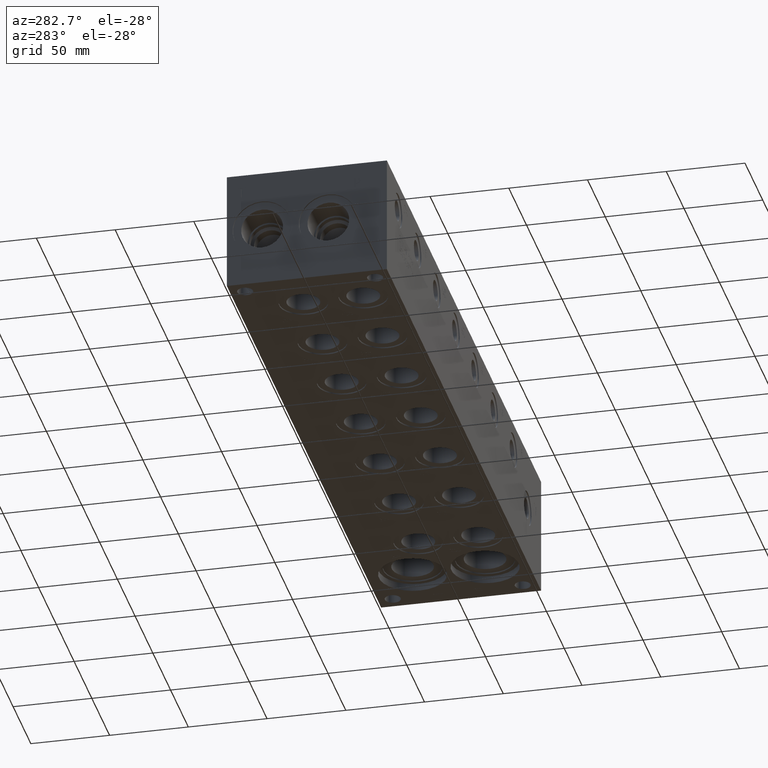
[diagram: clean part render]
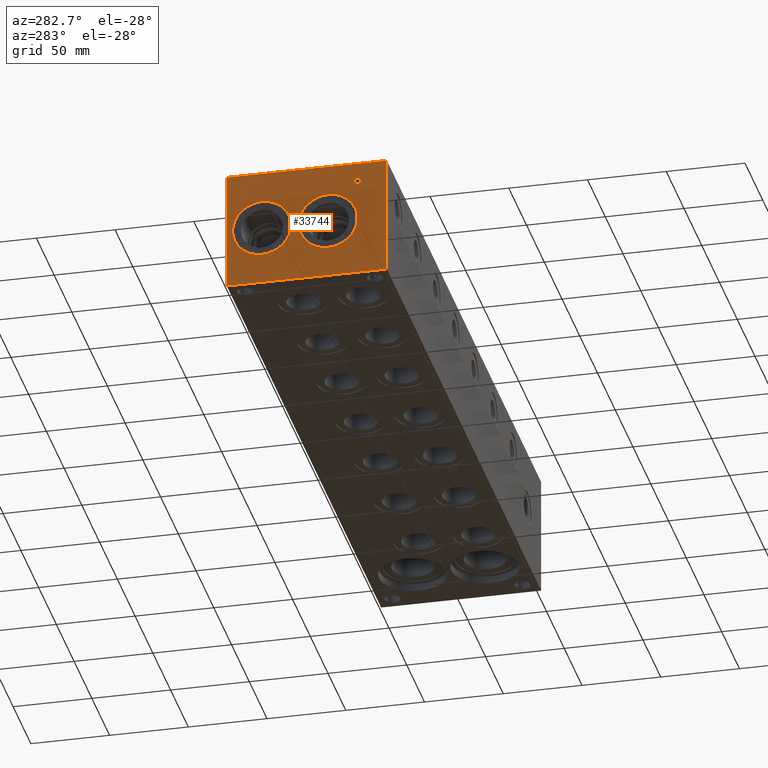
[diagram: same view with one face highlighted and labeled with its STEP entity id]
A machine part, auxiliary view. The second image highlights one B-rep face of the part: STEP entity #33744.
In plain terms, the highlighted planar face has unit normal (-1, 0, 0).
Its self-contained STEP definition (entity closure, byte-faithful):
#452=CIRCLE('',#35394,18.5547);
#453=CIRCLE('',#35395,18.5547);
#454=CIRCLE('',#35396,18.5547);
#455=CIRCLE('',#35397,18.5547);
#1409=FACE_BOUND('',#5871,.T.);
#1410=FACE_BOUND('',#5872,.T.);
#1411=FACE_BOUND('',#5873,.T.);
#1412=FACE_BOUND('',#5874,.T.);
#2229=B_SPLINE_CURVE_WITH_KNOTS('',2,(#51890,#51891,#51892,#51893),
 .UNSPECIFIED.,.F.,.F.,(3,1,3),(0.,1.,2.),.UNSPECIFIED.);
#2231=B_SPLINE_CURVE_WITH_KNOTS('',2,(#51911,#51912,#51913,#51914),
 .UNSPECIFIED.,.F.,.F.,(3,1,3),(0.,1.,2.),.UNSPECIFIED.);
#2233=B_SPLINE_CURVE_WITH_KNOTS('',2,(#51960,#51961,#51962,#51963),
 .UNSPECIFIED.,.F.,.F.,(3,1,3),(0.,1.,2.),.UNSPECIFIED.);
#2235=B_SPLINE_CURVE_WITH_KNOTS('',2,(#51978,#51979,#51980,#51981),
 .UNSPECIFIED.,.F.,.F.,(3,1,3),(0.,1.,2.),.UNSPECIFIED.);
#3948=FACE_OUTER_BOUND('',#5870,.T.);
#5870=EDGE_LOOP('',(#25106,#25107,#25108,#25109));
#5871=EDGE_LOOP('',(#25110,#25111));
#5872=EDGE_LOOP('',(#25112,#25113));
#5873=EDGE_LOOP('',(#25114,#25115,#25116,#25117,#25118,#25119,#25120,#25121));
#5874=EDGE_LOOP('',(#25122,#25123,#25124,#25125,#25126,#25127,#25128,#25129,
#25130));
#7509=LINE('',#46498,#10373);
#8032=LINE('',#48661,#10896);
#8648=LINE('',#51923,#11512);
#8651=LINE('',#51929,#11515);
#8654=LINE('',#51935,#11518);
#8657=LINE('',#51941,#11521);
#8660=LINE('',#51947,#11524);
#8664=LINE('',#51989,#11528);
#8665=LINE('',#51990,#11529);
#8666=LINE('',#52001,#11530);
#8667=LINE('',#52003,#11531);
#8668=LINE('',#52005,#11532);
#8669=LINE('',#52007,#11533);
#8670=LINE('',#52009,#11534);
#8671=LINE('',#52011,#11535);
#8672=LINE('',#52013,#11536);
#8673=LINE('',#52014,#11537);
#10373=VECTOR('',#37496,10.);
#10896=VECTOR('',#38375,10.);
#11512=VECTOR('',#39489,10.);
#11515=VECTOR('',#39494,10.);
#11518=VECTOR('',#39499,10.);
#11521=VECTOR('',#39504,10.);
#11524=VECTOR('',#39509,10.);
#11528=VECTOR('',#39517,10.);
#11529=VECTOR('',#39518,10.);
#11530=VECTOR('',#39527,10.);
#11531=VECTOR('',#39528,10.);
#11532=VECTOR('',#39529,10.);
#11533=VECTOR('',#39530,10.);
#11534=VECTOR('',#39531,10.);
#11535=VECTOR('',#39532,10.);
#11536=VECTOR('',#39533,10.);
#11537=VECTOR('',#39534,10.);
#13266=VERTEX_POINT('',#46491);
#13269=VERTEX_POINT('',#46496);
#13843=VERTEX_POINT('',#48660);
#14442=VERTEX_POINT('',#51888);
#14443=VERTEX_POINT('',#51889);
#14446=VERTEX_POINT('',#51910);
#14448=VERTEX_POINT('',#51922);
#14450=VERTEX_POINT('',#51928);
#14452=VERTEX_POINT('',#51934);
#14454=VERTEX_POINT('',#51940);
#14456=VERTEX_POINT('',#51946);
#14458=VERTEX_POINT('',#51959);
#14460=VERTEX_POINT('',#51988);
#14461=VERTEX_POINT('',#51991);
#14462=VERTEX_POINT('',#51992);
#14463=VERTEX_POINT('',#51995);
#14464=VERTEX_POINT('',#51996);
#14465=VERTEX_POINT('',#51999);
#14466=VERTEX_POINT('',#52000);
#14467=VERTEX_POINT('',#52002);
#14468=VERTEX_POINT('',#52004);
#14469=VERTEX_POINT('',#52006);
#14470=VERTEX_POINT('',#52008);
#14471=VERTEX_POINT('',#52010);
#14472=VERTEX_POINT('',#52012);
#16825=EDGE_CURVE('',#13266,#13269,#7509,.T.);
#17554=EDGE_CURVE('',#13843,#13266,#8032,.T.);
#18431=EDGE_CURVE('',#14442,#14443,#2229,.T.);
#18435=EDGE_CURVE('',#14446,#14442,#2231,.T.);
#18438=EDGE_CURVE('',#14448,#14446,#8648,.T.);
#18441=EDGE_CURVE('',#14450,#14448,#8651,.T.);
#18444=EDGE_CURVE('',#14452,#14450,#8654,.T.);
#18447=EDGE_CURVE('',#14454,#14452,#8657,.T.);
#18450=EDGE_CURVE('',#14456,#14454,#8660,.T.);
#18453=EDGE_CURVE('',#14458,#14456,#2233,.T.);
#18456=EDGE_CURVE('',#14443,#14458,#2235,.T.);
#18458=EDGE_CURVE('',#14460,#13269,#8664,.T.);
#18459=EDGE_CURVE('',#13843,#14460,#8665,.T.);
#18460=EDGE_CURVE('',#14461,#14462,#452,.T.);
#18461=EDGE_CURVE('',#14462,#14461,#453,.T.);
#18462=EDGE_CURVE('',#14463,#14464,#454,.T.);
#18463=EDGE_CURVE('',#14464,#14463,#455,.T.);
#18464=EDGE_CURVE('',#14465,#14466,#8666,.T.);
#18465=EDGE_CURVE('',#14466,#14467,#8667,.T.);
#18466=EDGE_CURVE('',#14467,#14468,#8668,.T.);
#18467=EDGE_CURVE('',#14468,#14469,#8669,.T.);
#18468=EDGE_CURVE('',#14469,#14470,#8670,.T.);
#18469=EDGE_CURVE('',#14470,#14471,#8671,.T.);
#18470=EDGE_CURVE('',#14471,#14472,#8672,.T.);
#18471=EDGE_CURVE('',#14472,#14465,#8673,.T.);
#25106=ORIENTED_EDGE('',*,*,#17554,.T.);
#25107=ORIENTED_EDGE('',*,*,#16825,.T.);
#25108=ORIENTED_EDGE('',*,*,#18458,.F.);
#25109=ORIENTED_EDGE('',*,*,#18459,.F.);
#25110=ORIENTED_EDGE('',*,*,#18460,.T.);
#25111=ORIENTED_EDGE('',*,*,#18461,.T.);
#25112=ORIENTED_EDGE('',*,*,#18462,.T.);
#25113=ORIENTED_EDGE('',*,*,#18463,.T.);
#25114=ORIENTED_EDGE('',*,*,#18464,.T.);
#25115=ORIENTED_EDGE('',*,*,#18465,.T.);
#25116=ORIENTED_EDGE('',*,*,#18466,.T.);
#25117=ORIENTED_EDGE('',*,*,#18467,.T.);
#25118=ORIENTED_EDGE('',*,*,#18468,.T.);
#25119=ORIENTED_EDGE('',*,*,#18469,.T.);
#25120=ORIENTED_EDGE('',*,*,#18470,.T.);
#25121=ORIENTED_EDGE('',*,*,#18471,.T.);
#25122=ORIENTED_EDGE('',*,*,#18431,.T.);
#25123=ORIENTED_EDGE('',*,*,#18456,.T.);
#25124=ORIENTED_EDGE('',*,*,#18453,.T.);
#25125=ORIENTED_EDGE('',*,*,#18450,.T.);
#25126=ORIENTED_EDGE('',*,*,#18447,.T.);
#25127=ORIENTED_EDGE('',*,*,#18444,.T.);
#25128=ORIENTED_EDGE('',*,*,#18441,.T.);
#25129=ORIENTED_EDGE('',*,*,#18438,.T.);
#25130=ORIENTED_EDGE('',*,*,#18435,.T.);
#31377=PLANE('',#35393);
#33744=ADVANCED_FACE('',(#3948,#1409,#1410,#1411,#1412),#31377,.T.);
#35393=AXIS2_PLACEMENT_3D('',#51987,#39515,#39516);
#35394=AXIS2_PLACEMENT_3D('',#51993,#39519,#39520);
#35395=AXIS2_PLACEMENT_3D('',#51994,#39521,#39522);
#35396=AXIS2_PLACEMENT_3D('',#51997,#39523,#39524);
#35397=AXIS2_PLACEMENT_3D('',#51998,#39525,#39526);
#37496=DIRECTION('',(0.,0.,1.));
#38375=DIRECTION('',(0.,-1.,0.));
#39489=DIRECTION('',(0.,-1.,-5.56775304226774E-15));
#39494=DIRECTION('',(0.,-3.49676548440641E-15,1.));
#39499=DIRECTION('',(0.,1.,0.));
#39504=DIRECTION('',(0.,3.75218139805001E-15,-1.));
#39509=DIRECTION('',(0.,1.,0.));
#39515=DIRECTION('center_axis',(-1.,0.,0.));
#39516=DIRECTION('ref_axis',(0.,-1.,0.));
#39517=DIRECTION('',(0.,-1.,0.));
#39518=DIRECTION('',(0.,0.,1.));
#39519=DIRECTION('center_axis',(1.,0.,0.));
#39520=DIRECTION('ref_axis',(0.,0.,1.));
#39521=DIRECTION('center_axis',(1.,0.,0.));
#39522=DIRECTION('ref_axis',(0.,0.,1.));
#39523=DIRECTION('center_axis',(1.,0.,0.));
#39524=DIRECTION('ref_axis',(0.,0.,1.));
#39525=DIRECTION('center_axis',(1.,0.,0.));
#39526=DIRECTION('ref_axis',(0.,0.,1.));
#39527=DIRECTION('',(0.,1.,0.));
#39528=DIRECTION('',(0.,-3.17280044688052E-15,1.));
#39529=DIRECTION('',(0.,1.,4.16909044227778E-15));
#39530=DIRECTION('',(0.,0.,1.));
#39531=DIRECTION('',(0.,-1.,-1.73992282570867E-15));
#39532=DIRECTION('',(0.,0.,-1.));
#39533=DIRECTION('',(0.,1.,0.));
#39534=DIRECTION('',(0.,3.17280044688052E-15,-1.));
#46491=CARTESIAN_POINT('',(0.,0.,0.));
#46496=CARTESIAN_POINT('',(0.,0.,76.2));
#46498=CARTESIAN_POINT('',(0.,0.,0.));
#48660=CARTESIAN_POINT('',(0.,101.6,0.));
#48661=CARTESIAN_POINT('',(0.,101.6,0.));
#51888=CARTESIAN_POINT('',(0.,17.5306827976406,65.4850181439707));
#51889=CARTESIAN_POINT('',(0.,16.774240345468,63.9669873726039));
#51890=CARTESIAN_POINT('Ctrl Pts',(0.,17.5306827976406,65.4850181439707));
#51891=CARTESIAN_POINT('Ctrl Pts',(0.,17.1756179731514,65.2431623939564));
#51892=CARTESIAN_POINT('Ctrl Pts',(0.,16.774240345468,64.4970116758269));
#51893=CARTESIAN_POINT('Ctrl Pts',(0.,16.774240345468,63.9669873726039));
#51910=CARTESIAN_POINT('',(0.,19.1927978456117,65.8812499046326));
#51911=CARTESIAN_POINT('Ctrl Pts',(0.,19.1927978456117,65.8812499046326));
#51912=CARTESIAN_POINT('Ctrl Pts',(0.,18.6267524732376,65.8812499046326));
#51913=CARTESIAN_POINT('Ctrl Pts',(0.,17.834288951914,65.6959986918556));
#51914=CARTESIAN_POINT('Ctrl Pts',(0.,17.5306827976406,65.4850181439707));
#51922=CARTESIAN_POINT('',(0.,20.7880166223022,65.8812499046326));
#51923=CARTESIAN_POINT('',(0.,61.1940083111509,65.8812499046328));
#51928=CARTESIAN_POINT('',(0.,20.7880166223022,59.53125));
#51929=CARTESIAN_POINT('',(0.,20.7880166223023,29.7656249999999));
#51934=CARTESIAN_POINT('',(0.,19.9440944307627,59.53125));
#51935=CARTESIAN_POINT('',(0.,60.7720472153814,59.53125));
#51940=CARTESIAN_POINT('',(0.,19.9440944307627,61.8983488299279));
#51941=CARTESIAN_POINT('',(0.,19.9440944307628,30.9491744149638));
#51946=CARTESIAN_POINT('',(0.,19.2288189147628,61.8983488299279));
#51947=CARTESIAN_POINT('',(0.,60.4144094573814,61.8983488299279));
#51959=CARTESIAN_POINT('',(0.,17.3299939837989,62.5570198086904));
#51960=CARTESIAN_POINT('Ctrl Pts',(0.,17.3299939837989,62.5570198086904));
#51961=CARTESIAN_POINT('Ctrl Pts',(0.,17.6593294731802,62.2328301863307));
#51962=CARTESIAN_POINT('Ctrl Pts',(0.,18.5495644679139,61.8983488299279));
#51963=CARTESIAN_POINT('Ctrl Pts',(0.,19.2288189147628,61.8983488299279));
#51978=CARTESIAN_POINT('Ctrl Pts',(0.,16.774240345468,63.9669873726039));
#51979=CARTESIAN_POINT('Ctrl Pts',(0.,16.774240345468,63.5553180108774));
#51980=CARTESIAN_POINT('Ctrl Pts',(0.,17.0675547656982,62.8143131597695));
#51981=CARTESIAN_POINT('Ctrl Pts',(0.,17.3299939837989,62.5570198086904));
#51987=CARTESIAN_POINT('Origin',(0.,101.6,0.));
#51988=CARTESIAN_POINT('',(0.,101.6,76.2));
#51989=CARTESIAN_POINT('',(0.,101.6,76.2));
#51990=CARTESIAN_POINT('',(0.,101.6,0.));
#51991=CARTESIAN_POINT('',(0.,79.375,56.6547));
#51992=CARTESIAN_POINT('',(0.,79.375,19.5453));
#51993=CARTESIAN_POINT('Origin',(0.,79.375,38.1));
#51994=CARTESIAN_POINT('Origin',(0.,79.375,38.1));
#51995=CARTESIAN_POINT('',(0.,37.3126,56.6547));
#51996=CARTESIAN_POINT('',(0.,37.3126,19.5453));
#51997=CARTESIAN_POINT('Origin',(0.,37.3126,38.1));
#51998=CARTESIAN_POINT('Origin',(0.,37.3126,38.1));
#51999=CARTESIAN_POINT('',(0.,91.487084728547,61.11875));
#52000=CARTESIAN_POINT('',(0.,92.3310069200865,61.11875));
#52001=CARTESIAN_POINT('',(0.,96.5435423642735,61.11875));
#52002=CARTESIAN_POINT('',(0.,92.3310069200865,66.7174533194815));
#52003=CARTESIAN_POINT('',(0.,92.3310069200866,30.559375));
#52004=CARTESIAN_POINT('',(0.,94.4613958670215,66.7174533194816));
#52005=CARTESIAN_POINT('',(0.,96.9655034600431,66.7174533194816));
#52006=CARTESIAN_POINT('',(0.,94.4613958670215,67.4687499046326));
#52007=CARTESIAN_POINT('',(0.,94.4613958670216,33.3587266597408));
#52008=CARTESIAN_POINT('',(0.,89.3566957816119,67.4687499046326));
#52009=CARTESIAN_POINT('',(0.,98.0306979335107,67.4687499046326));
#52010=CARTESIAN_POINT('',(0.,89.3566957816119,66.7174533194815));
#52011=CARTESIAN_POINT('',(0.,89.3566957816119,33.7343749523163));
#52012=CARTESIAN_POINT('',(0.,91.487084728547,66.7174533194815));
#52013=CARTESIAN_POINT('',(0.,95.4783478908059,66.7174533194815));
#52014=CARTESIAN_POINT('',(0.,91.4870847285471,33.3587266597408));